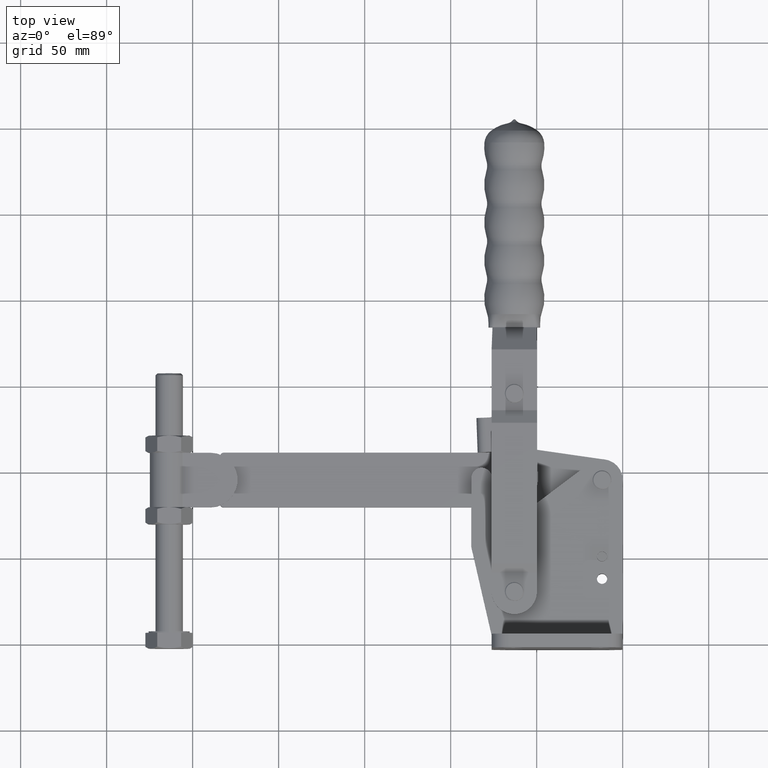
[diagram: clean part render]
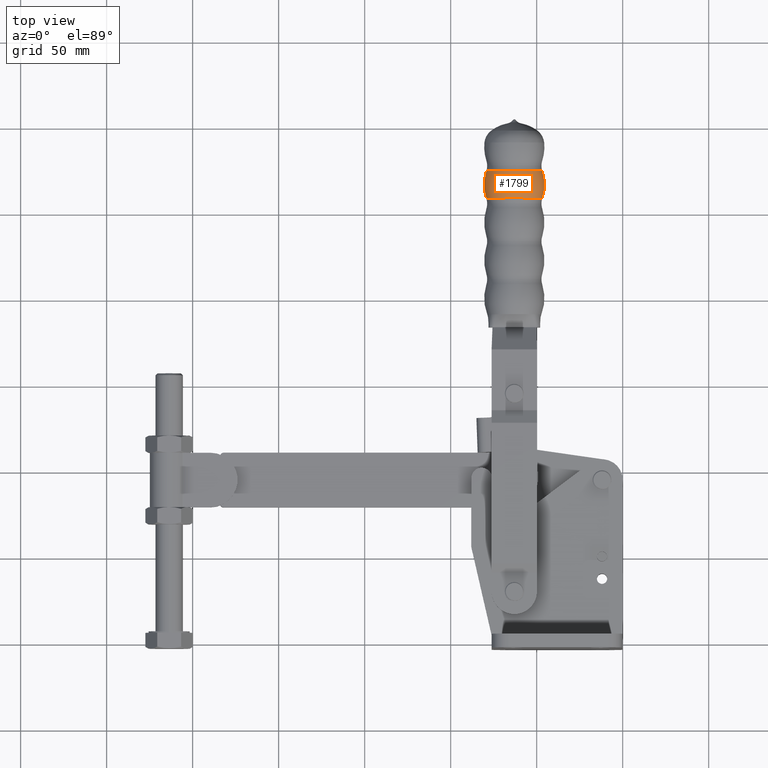
[diagram: same view with one face highlighted and labeled with its STEP entity id]
A machine part, top view. The second image highlights one B-rep face of the part: STEP entity #1799.
In plain terms, the highlighted toroidal blend (fillet) surface has major radius 8.5 mm and minor (blend) radius 26 mm.
Its self-contained STEP definition (entity closure, byte-faithful):
#240 = TOROIDAL_SURFACE ( 'NONE', #9812, -8.500000000000152800, 25.99999999999999300 ) ;
#581 = DIRECTION ( 'NONE',  ( 9.986945165038633700E-016, 1.000000000000000000, -6.753682777751561400E-016 ) ) ;
#1158 = CIRCLE ( 'NONE', #12894, 25.99999999999999600 ) ;
#1324 = CIRCLE ( 'NONE', #11307, 16.25653050144808300 ) ;
#1376 = DIRECTION ( 'NONE',  ( 3.643658971098867300E-016, 6.753682777751557500E-016, 1.000000000000000000 ) ) ;
#1799 = ADVANCED_FACE ( 'NONE', ( #11989 ), #240, .T. ) ;
#1803 = ORIENTED_EDGE ( 'NONE', *, *, #1999, .F. ) ;
#1999 = EDGE_CURVE ( 'NONE', #4512, #12682, #4620, .T. ) ;
#2653 = CARTESIAN_POINT ( 'NONE',  ( -46.74346949855269200, 274.7444444444441300, -5.000000000000238900 ) ) ;
#3276 = EDGE_CURVE ( 'NONE', #7534, #12682, #1158, .T. ) ;
#3325 = DIRECTION ( 'NONE',  ( 9.986945165038633700E-016, 1.000000000000000000, -6.753682777751561400E-016 ) ) ;
#3900 = DIRECTION ( 'NONE',  ( 1.000000000000000000, 0.0000000000000000000, -3.734826545786022600E-016 ) ) ;
#4080 = CARTESIAN_POINT ( 'NONE',  ( -54.50000000000059700, 266.7999999999996100, -5.000000000000230000 ) ) ;
#4512 = VERTEX_POINT ( 'NONE', #6293 ) ;
#4518 = CARTESIAN_POINT ( 'NONE',  ( -46.74346949855267000, 258.8555555555552700, -5.000000000000228300 ) ) ;
#4620 = CIRCLE ( 'NONE', #10954, 16.25653050144802600 ) ;
#5136 = DIRECTION ( 'NONE',  ( 0.0000000000000000000, 1.000000000000000000, -6.672013369141574100E-016 ) ) ;
#5354 = CIRCLE ( 'NONE', #5525, 25.99999999999996800 ) ;
#5525 = AXIS2_PLACEMENT_3D ( 'NONE', #4080, #11404, #5136 ) ;
#5778 = DIRECTION ( 'NONE',  ( 9.986945165038633700E-016, 1.000000000000000000, -6.753682777751561400E-016 ) ) ;
#6293 = CARTESIAN_POINT ( 'NONE',  ( -79.25653050144876500, 274.7444444444441300, -5.000000000000229200 ) ) ;
#6592 = ORIENTED_EDGE ( 'NONE', *, *, #9745, .F. ) ;
#6790 = CARTESIAN_POINT ( 'NONE',  ( -63.00000000000075300, 258.8555555555552700, -5.000000000000222000 ) ) ;
#7428 = DIRECTION ( 'NONE',  ( 1.000000000000000000, -9.986945165038635600E-016, -3.469446951953640300E-016 ) ) ;
#7534 = VERTEX_POINT ( 'NONE', #4518 ) ;
#7573 = EDGE_LOOP ( 'NONE', ( #6592, #8458, #12924, #1803 ) ) ;
#7836 = DIRECTION ( 'NONE',  ( 1.000000000000000000, 0.0000000000000000000, -3.734826545786009300E-016 ) ) ;
#8458 = ORIENTED_EDGE ( 'NONE', *, *, #8833, .T. ) ;
#8759 = CARTESIAN_POINT ( 'NONE',  ( -79.25653050144883600, 258.8555555555552700, -5.000000000000223800 ) ) ;
#8808 = VERTEX_POINT ( 'NONE', #8759 ) ;
#8833 = EDGE_CURVE ( 'NONE', #8808, #7534, #1324, .T. ) ;
#9016 = CARTESIAN_POINT ( 'NONE',  ( -63.00000000000073900, 274.7444444444441300, -5.000000000000233600 ) ) ;
#9745 = EDGE_CURVE ( 'NONE', #8808, #4512, #5354, .T. ) ;
#9812 = AXIS2_PLACEMENT_3D ( 'NONE', #10708, #3325, #7428 ) ;
#10410 = CARTESIAN_POINT ( 'NONE',  ( -71.50000000000089500, 266.7999999999996100, -5.000000000000224700 ) ) ;
#10708 = CARTESIAN_POINT ( 'NONE',  ( -63.00000000000075300, 266.7999999999996100, -5.000000000000228300 ) ) ;
#10954 = AXIS2_PLACEMENT_3D ( 'NONE', #9016, #5778, #3900 ) ;
#11307 = AXIS2_PLACEMENT_3D ( 'NONE', #6790, #581, #7836 ) ;
#11404 = DIRECTION ( 'NONE',  ( -2.419012171951514300E-016, -6.753682777751559500E-016, -1.000000000000000000 ) ) ;
#11989 = FACE_OUTER_BOUND ( 'NONE', #7573, .T. ) ;
#12159 = DIRECTION ( 'NONE',  ( 0.0000000000000000000, -1.000000000000000000, 6.672013369141566200E-016 ) ) ;
#12682 = VERTEX_POINT ( 'NONE', #2653 ) ;
#12894 = AXIS2_PLACEMENT_3D ( 'NONE', #10410, #1376, #12159 ) ;
#12924 = ORIENTED_EDGE ( 'NONE', *, *, #3276, .T. ) ;